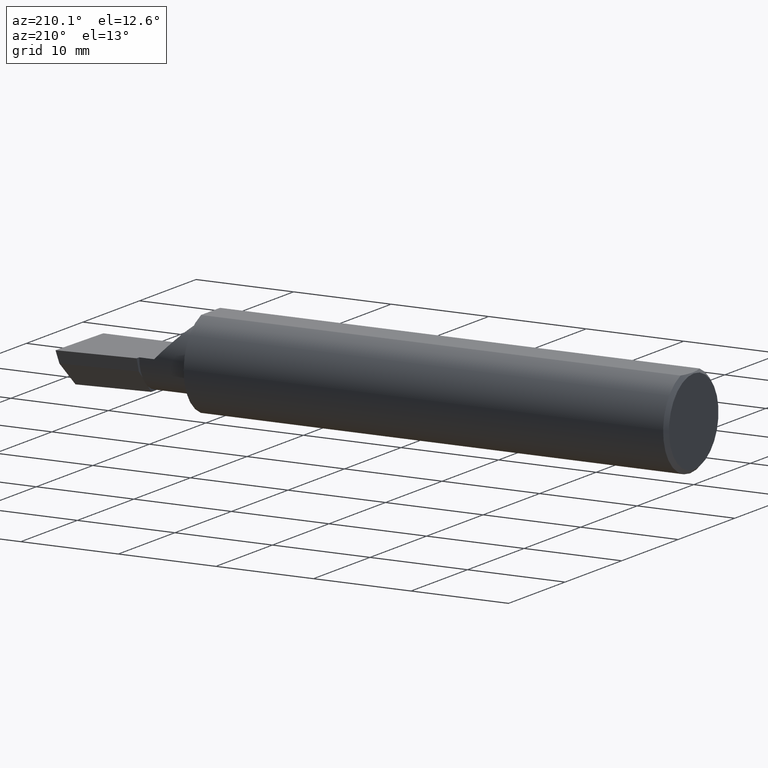
[diagram: clean part render]
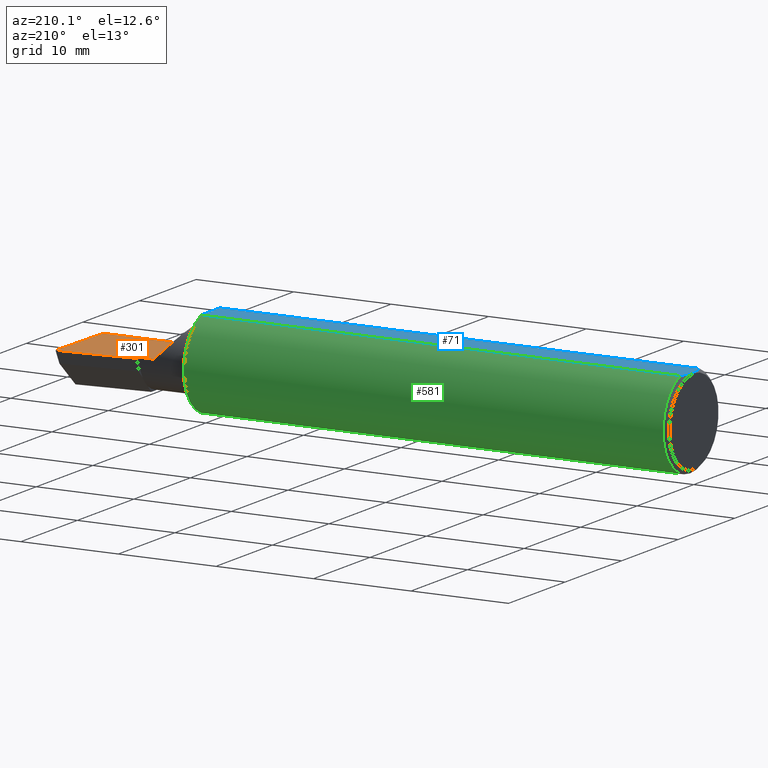
[diagram: same view with three faces highlighted in distinct colors, each labeled with its STEP entity id]
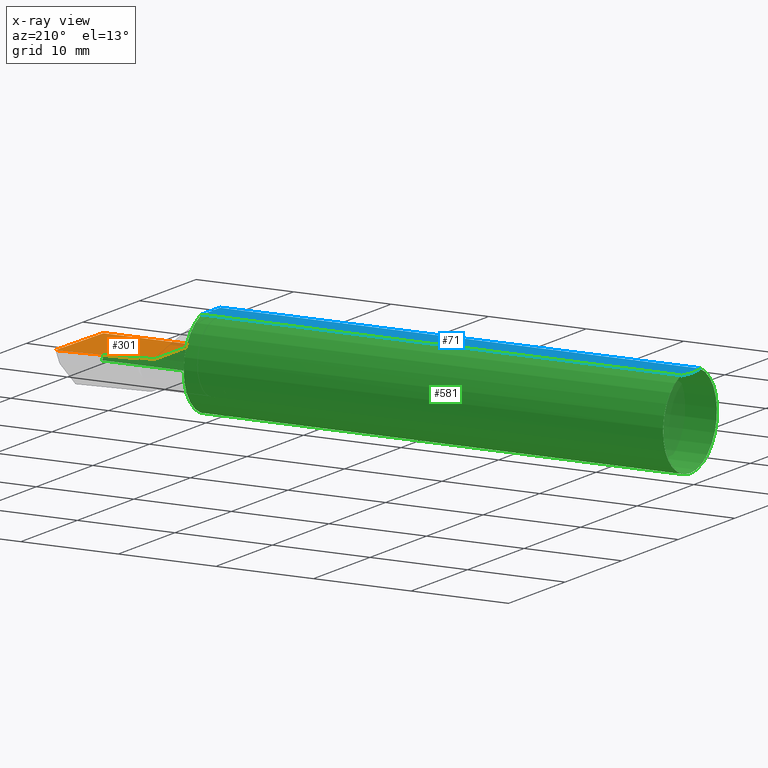
[diagram: x-ray of the same camera — body ghosted, the three highlighted faces saturated]
A machine part, auxiliary view with three faces highlighted in distinct colors.
The next image is the same camera in x-ray (body ghosted, the three faces saturated) — at least one of them is partly hidden behind the body in this view.
Their STEP definitions:

[orange] entity #301 — the highlighted planar face has unit normal (-0, 0, -1).
#35 = CARTESIAN_POINT ( 'NONE',  ( 2.189999999999999947, 0.08265000000000004288, 3.267291166268305196E-16 ) ) ;
#49 = VERTEX_POINT ( 'NONE', #541 ) ;
#50 = VERTEX_POINT ( 'NONE', #280 ) ;
#51 = DIRECTION ( 'NONE',  ( -1.000000000000000000, -0.0000000000000000000, -0.0000000000000000000 ) ) ;
#69 = EDGE_CURVE ( 'NONE', #425, #50, #242, .T. ) ;
#84 = CARTESIAN_POINT ( 'NONE',  ( 2.189999999999999947, -0.2500000000000000555, 1.003418815229743595E-16 ) ) ;
#122 = EDGE_CURVE ( 'NONE', #437, #49, #365, .T. ) ;
#152 = LINE ( 'NONE', #441, #511 ) ;
#187 = FACE_OUTER_BOUND ( 'NONE', #223, .T. ) ;
#194 = ORIENTED_EDGE ( 'NONE', *, *, #402, .T. ) ;
#199 = CARTESIAN_POINT ( 'NONE',  ( 2.129999999999999893, -0.2500000000000000555, 1.065442715258197396E-16 ) ) ;
#203 = LINE ( 'NONE', #313, #575 ) ;
#212 = VECTOR ( 'NONE', #51, 39.37007874015748143 ) ;
#222 = CARTESIAN_POINT ( 'NONE',  ( 3.377502344341257155E-32, -0.1873499999999999610, 3.267291166268304703E-16 ) ) ;
#223 = EDGE_LOOP ( 'NONE', ( #388, #194, #316, #262, #554, #263 ) ) ;
#226 = EDGE_CURVE ( 'NONE', #546, #425, #152, .T. ) ;
#238 = VECTOR ( 'NONE', #288, 39.37007874015748143 ) ;
#242 = LINE ( 'NONE', #84, #455 ) ;
#254 = LINE ( 'NONE', #199, #238 ) ;
#262 = ORIENTED_EDGE ( 'NONE', *, *, #69, .F. ) ;
#263 = ORIENTED_EDGE ( 'NONE', *, *, #477, .F. ) ;
#280 = CARTESIAN_POINT ( 'NONE',  ( 2.189999999999999947, 0.1008003950587674363, 3.265412054926814582E-16 ) ) ;
#288 = DIRECTION ( 'NONE',  ( -0.0000000000000000000, 1.000000000000000000, -0.0000000000000000000 ) ) ;
#291 = VERTEX_POINT ( 'NONE', #352 ) ;
#301 = ADVANCED_FACE ( 'NONE', ( #187 ), #423, .F. ) ;
#313 = CARTESIAN_POINT ( 'NONE',  ( 2.490039159128059953, -0.2497391662021650194, 6.932588350567417155E-17 ) ) ;
#316 = ORIENTED_EDGE ( 'NONE', *, *, #362, .F. ) ;
#352 = CARTESIAN_POINT ( 'NONE',  ( 2.499999999999978684, 0.1306500000000237194, 8.388960953200464909E-14 ) ) ;
#362 = EDGE_CURVE ( 'NONE', #50, #291, #531, .T. ) ;
#365 = LINE ( 'NONE', #222, #212 ) ;
#379 = AXIS2_PLACEMENT_3D ( 'NONE', #390, #514, #506 ) ;
#381 = DIRECTION ( 'NONE',  ( 0.02617694830779364323, 0.9996573249755593693, -2.665804247635780349E-18 ) ) ;
#386 = DIRECTION ( 'NONE',  ( 0.9953961983671787417, 0.09584575252022456415, -1.028972571603813720E-16 ) ) ;
#388 = ORIENTED_EDGE ( 'NONE', *, *, #122, .F. ) ;
#390 = CARTESIAN_POINT ( 'NONE',  ( 2.500000000000000000, -0.2500000000000000555, 6.829619984160658046E-17 ) ) ;
#402 = EDGE_CURVE ( 'NONE', #437, #291, #203, .T. ) ;
#423 = PLANE ( 'NONE',  #379 ) ;
#425 = VERTEX_POINT ( 'NONE', #35 ) ;
#427 = CARTESIAN_POINT ( 'NONE',  ( 0.5470260790800310913, -0.05740000000000000657, 2.701812985571357332E-16 ) ) ;
#437 = VERTEX_POINT ( 'NONE', #530 ) ;
#441 = CARTESIAN_POINT ( 'NONE',  ( -9.564882787816664242E-19, 0.08264999999999998737, 3.267291166268304703E-16 ) ) ;
#455 = VECTOR ( 'NONE', #498, 39.37007874015748143 ) ;
#477 = EDGE_CURVE ( 'NONE', #49, #546, #254, .T. ) ;
#498 = DIRECTION ( 'NONE',  ( -6.829619984160658816E-18, 1.000000000000000000, 7.059994452165177242E-34 ) ) ;
#506 = DIRECTION ( 'NONE',  ( -1.000000000000000000, 0.0000000000000000000, 1.033731667140896077E-16 ) ) ;
#507 = VECTOR ( 'NONE', #386, 39.37007874015748143 ) ;
#511 = VECTOR ( 'NONE', #589, 39.37007874015748143 ) ;
#514 = DIRECTION ( 'NONE',  ( -1.033731667140896077E-16, 0.0000000000000000000, -1.000000000000000000 ) ) ;
#530 = CARTESIAN_POINT ( 'NONE',  ( 2.491672876940991710, -0.1873499999999999888, 6.915950918908297591E-17 ) ) ;
#531 = LINE ( 'NONE', #427, #507 ) ;
#541 = CARTESIAN_POINT ( 'NONE',  ( 2.129999999999999893, -0.1873499999999999888, 1.065442715258197396E-16 ) ) ;
#546 = VERTEX_POINT ( 'NONE', #583 ) ;
#554 = ORIENTED_EDGE ( 'NONE', *, *, #226, .F. ) ;
#575 = VECTOR ( 'NONE', #381, 39.37007874015748854 ) ;
#583 = CARTESIAN_POINT ( 'NONE',  ( 2.129999999999999893, 0.08264999999999990410, 1.065442715258197396E-16 ) ) ;
#589 = DIRECTION ( 'NONE',  ( 1.000000000000000000, 6.829619984160658046E-18, 0.0000000000000000000 ) ) ;

[blue] entity #71 — the highlighted planar face has unit normal (0, -0, -1).
#5 = CARTESIAN_POINT ( 'NONE',  ( 0.01125230581755086272, 0.05532998191409922023, 0.1753500000000000059 ) ) ;
#14 = CARTESIAN_POINT ( 'NONE',  ( 1.949999999999999956, 0.2373500000000000332, 0.1753499999999999504 ) ) ;
#32 = CARTESIAN_POINT ( 'NONE',  ( 0.003000000000000169632, 0.01127363201155560934, 0.1753499999999999781 ) ) ;
#34 = CARTESIAN_POINT ( 'NONE',  ( 2.500000000000000000, 0.2373500000000000332, 0.1753499999999999504 ) ) ;
#53 = VECTOR ( 'NONE', #426, 39.37007874015748143 ) ;
#71 = ADVANCED_FACE ( 'NONE', ( #183 ), #261, .F. ) ;
#80 = EDGE_CURVE ( 'NONE', #81, #276, #235, .T. ) ;
#81 = VERTEX_POINT ( 'NONE', #251 ) ;
#82 = CARTESIAN_POINT ( 'NONE',  ( 0.004093196532652216939, -0.02240707710020816909, 0.1753499999999999504 ) ) ;
#89 = VECTOR ( 'NONE', #182, 39.37007874015748143 ) ;
#100 = EDGE_LOOP ( 'NONE', ( #513, #103, #480, #274, #311 ) ) ;
#103 = ORIENTED_EDGE ( 'NONE', *, *, #141, .F. ) ;
#130 = CARTESIAN_POINT ( 'NONE',  ( 0.008244775919947424855, 0.04453482769755855164, 0.1753499999999999504 ) ) ;
#141 = EDGE_CURVE ( 'NONE', #276, #233, #177, .T. ) ;
#144 = CARTESIAN_POINT ( 'NONE',  ( 0.003000000000000218638, 2.334609556160449697E-17, 0.1753499999999999781 ) ) ;
#146 = DIRECTION ( 'NONE',  ( 1.000000000000000000, 0.0000000000000000000, 0.0000000000000000000 ) ) ;
#149 = CARTESIAN_POINT ( 'NONE',  ( 0.0000000000000000000, 0.06597272163553663527, 0.1753499999999999781 ) ) ;
#171 = CARTESIAN_POINT ( 'NONE',  ( 0.003000000000000218638, 2.334609556160449697E-17, 0.1753499999999999781 ) ) ;
#176 = CARTESIAN_POINT ( 'NONE',  ( 0.004115035183746292881, 0.02255629470626744487, 0.1753499999999999781 ) ) ;
#177 = LINE ( 'NONE', #149, #299 ) ;
#182 = DIRECTION ( 'NONE',  ( 6.829619984160658046E-18, -1.000000000000000000, 1.438723400918613551E-16 ) ) ;
#183 = FACE_OUTER_BOUND ( 'NONE', #100, .T. ) ;
#191 = CARTESIAN_POINT ( 'NONE',  ( 0.003000000000000172667, -0.01126410975715121283, 0.1753500000000000059 ) ) ;
#202 = CARTESIAN_POINT ( 'NONE',  ( 1.949999999999999956, -0.06597272163553659363, 0.1753499999999999781 ) ) ;
#205 = EDGE_CURVE ( 'NONE', #233, #553, #496, .T. ) ;
#229 = CARTESIAN_POINT ( 'NONE',  ( 0.01499999999999999424, 0.06597272163553663527, 0.1753499999999999781 ) ) ;
#233 = VERTEX_POINT ( 'NONE', #463 ) ;
#234 = CARTESIAN_POINT ( 'NONE',  ( 0.01499999999999997863, -0.06597272163553657975, 0.1753499999999999781 ) ) ;
#235 = B_SPLINE_CURVE_WITH_KNOTS ( 'NONE', 3,
 ( #171, #32, #176, #130, #5, #229 ),
 .UNSPECIFIED., .F., .F.,
 ( 4, 2, 4 ),
 ( 0.003480013901590607410, 0.004330767971208083697, 0.005181522040825559984 ),
 .UNSPECIFIED. ) ;
#240 = CARTESIAN_POINT ( 'NONE',  ( 0.01128414053810044941, -0.05542038647445821781, 0.1753499999999999781 ) ) ;
#251 = CARTESIAN_POINT ( 'NONE',  ( 0.003000000000000218638, 2.334609556160449697E-17, 0.1753499999999999781 ) ) ;
#261 = PLANE ( 'NONE',  #440 ) ;
#274 = ORIENTED_EDGE ( 'NONE', *, *, #537, .F. ) ;
#276 = VERTEX_POINT ( 'NONE', #385 ) ;
#286 = CARTESIAN_POINT ( 'NONE',  ( 0.008227791779583789808, -0.04447712204611815878, 0.1753499999999999781 ) ) ;
#296 = DIRECTION ( 'NONE',  ( 0.0000000000000000000, 1.000000000000000000, -1.438723400918613551E-16 ) ) ;
#299 = VECTOR ( 'NONE', #146, 39.37007874015748143 ) ;
#310 = EDGE_CURVE ( 'NONE', #553, #474, #424, .T. ) ;
#311 = ORIENTED_EDGE ( 'NONE', *, *, #310, .F. ) ;
#321 = CARTESIAN_POINT ( 'NONE',  ( 0.01499999999999997863, -0.06597272163553657975, 0.1753499999999999781 ) ) ;
#385 = CARTESIAN_POINT ( 'NONE',  ( 0.01499999999999999424, 0.06597272163553663527, 0.1753499999999999781 ) ) ;
#392 = CARTESIAN_POINT ( 'NONE',  ( 0.0000000000000000000, -0.06597272163553657975, 0.1753499999999999781 ) ) ;
#424 = LINE ( 'NONE', #392, #53 ) ;
#426 = DIRECTION ( 'NONE',  ( -1.000000000000000000, -0.0000000000000000000, -0.0000000000000000000 ) ) ;
#440 = AXIS2_PLACEMENT_3D ( 'NONE', #34, #588, #296 ) ;
#463 = CARTESIAN_POINT ( 'NONE',  ( 1.949999999999999956, 0.06597272163553663527, 0.1753499999999999781 ) ) ;
#474 = VERTEX_POINT ( 'NONE', #321 ) ;
#480 = ORIENTED_EDGE ( 'NONE', *, *, #80, .F. ) ;
#496 = LINE ( 'NONE', #14, #89 ) ;
#513 = ORIENTED_EDGE ( 'NONE', *, *, #205, .F. ) ;
#520 = B_SPLINE_CURVE_WITH_KNOTS ( 'NONE', 3,
 ( #234, #240, #286, #82, #191, #144 ),
 .UNSPECIFIED., .F., .F.,
 ( 4, 2, 4 ),
 ( 0.001779942938356815062, 0.002629978419973711019, 0.003480013901590607410 ),
 .UNSPECIFIED. ) ;
#537 = EDGE_CURVE ( 'NONE', #474, #81, #520, .T. ) ;
#553 = VERTEX_POINT ( 'NONE', #202 ) ;
#588 = DIRECTION ( 'NONE',  ( 0.0000000000000000000, -1.438723400918613551E-16, -1.000000000000000000 ) ) ;

[green] entity #581 — the highlighted cylindrical surface (partial cylindrical patch) has radius 4.7587 mm, axis along (-1, -0, -0).
#13 = EDGE_CURVE ( 'NONE', #325, #539, #565, .T. ) ;
#19 = DIRECTION ( 'NONE',  ( -1.000000000000000000, -0.0000000000000000000, -0.0000000000000000000 ) ) ;
#20 = ORIENTED_EDGE ( 'NONE', *, *, #317, .F. ) ;
#33 = VERTEX_POINT ( 'NONE', #111 ) ;
#37 = CARTESIAN_POINT ( 'NONE',  ( 1.959999999999999964, -0.1635956445993024810, 0.09130436773856244470 ) ) ;
#45 = EDGE_CURVE ( 'NONE', #553, #256, #318, .T. ) ;
#49 = VERTEX_POINT ( 'NONE', #541 ) ;
#51 = DIRECTION ( 'NONE',  ( -1.000000000000000000, -0.0000000000000000000, -0.0000000000000000000 ) ) ;
#53 = VECTOR ( 'NONE', #426, 39.37007874015748143 ) ;
#54 = CARTESIAN_POINT ( 'NONE',  ( 1.950535130224571256, -0.1482744458446704217, -0.1147666934430602859 ) ) ;
#56 = AXIS2_PLACEMENT_3D ( 'NONE', #489, #488, #485 ) ;
#61 = CARTESIAN_POINT ( 'NONE',  ( 0.01499999999999999424, 0.0000000000000000000, 0.0000000000000000000 ) ) ;
#67 = CARTESIAN_POINT ( 'NONE',  ( 0.0000000000000000000, 0.0000000000000000000, 0.0000000000000000000 ) ) ;
#77 = EDGE_CURVE ( 'NONE', #276, #395, #257, .T. ) ;
#78 = ORIENTED_EDGE ( 'NONE', *, *, #529, .T. ) ;
#86 = CARTESIAN_POINT ( 'NONE',  ( 2.481080296960508580, -0.1635956445993030084, -0.09130436773856176469 ) ) ;
#97 = AXIS2_PLACEMENT_3D ( 'NONE', #67, #170, #127 ) ;
#98 = CARTESIAN_POINT ( 'NONE',  ( 2.066758987970638284, -0.1792580844883770730, 0.06324101202936138755 ) ) ;
#101 = ORIENTED_EDGE ( 'NONE', *, *, #123, .F. ) ;
#111 = CARTESIAN_POINT ( 'NONE',  ( 2.038695632261437130, -0.1635956445993029529, 0.09130436773856191734 ) ) ;
#119 = DIRECTION ( 'NONE',  ( 0.0000000000000000000, 0.0000000000000000000, 1.000000000000000000 ) ) ;
#122 = EDGE_CURVE ( 'NONE', #437, #49, #365, .T. ) ;
#123 = EDGE_CURVE ( 'NONE', #461, #325, #534, .T. ) ;
#127 = DIRECTION ( 'NONE',  ( 0.0000000000000000000, 0.0000000000000000000, 1.000000000000000000 ) ) ;
#132 = VERTEX_POINT ( 'NONE', #37 ) ;
#136 = EDGE_CURVE ( 'NONE', #49, #33, #260, .T. ) ;
#141 = EDGE_CURVE ( 'NONE', #276, #233, #177, .T. ) ;
#146 = DIRECTION ( 'NONE',  ( 1.000000000000000000, 0.0000000000000000000, 0.0000000000000000000 ) ) ;
#149 = CARTESIAN_POINT ( 'NONE',  ( 0.0000000000000000000, 0.06597272163553663527, 0.1753499999999999781 ) ) ;
#158 = CARTESIAN_POINT ( 'NONE',  ( 2.038695632261437130, -0.1635956445993029529, 0.09130436773856191734 ) ) ;
#159 = ORIENTED_EDGE ( 'NONE', *, *, #45, .F. ) ;
#169 = CARTESIAN_POINT ( 'NONE',  ( 2.484117089522337452, -0.1792580844883771007, -0.06324101202936138755 ) ) ;
#170 = DIRECTION ( 'NONE',  ( -1.000000000000000000, -0.0000000000000000000, -0.0000000000000000000 ) ) ;
#174 = LINE ( 'NONE', #494, #190 ) ;
#177 = LINE ( 'NONE', #149, #299 ) ;
#179 = CARTESIAN_POINT ( 'NONE',  ( 2.097861799102314961, -0.1873500000000000165, 0.03213820089768509858 ) ) ;
#190 = VECTOR ( 'NONE', #508, 39.37007874015748143 ) ;
#193 = CARTESIAN_POINT ( 'NONE',  ( 2.129999999999999893, -0.1873499999999999888, 1.065442715258197396E-16 ) ) ;
#197 = ORIENTED_EDGE ( 'NONE', *, *, #338, .F. ) ;
#202 = CARTESIAN_POINT ( 'NONE',  ( 1.949999999999999956, -0.06597272163553659363, 0.1753499999999999781 ) ) ;
#207 = CARTESIAN_POINT ( 'NONE',  ( 2.481080296960508580, -0.1635956445993030084, -0.09130436773856176469 ) ) ;
#211 = ORIENTED_EDGE ( 'NONE', *, *, #141, .T. ) ;
#212 = VECTOR ( 'NONE', #51, 39.37007874015748143 ) ;
#216 = ORIENTED_EDGE ( 'NONE', *, *, #310, .T. ) ;
#222 = CARTESIAN_POINT ( 'NONE',  ( 3.377502344341257155E-32, -0.1873499999999999610, 3.267291166268304703E-16 ) ) ;
#231 = CARTESIAN_POINT ( 'NONE',  ( 1.956503643436638074, -0.1620795007490426487, -0.09397341491037392025 ) ) ;
#233 = VERTEX_POINT ( 'NONE', #463 ) ;
#243 = CARTESIAN_POINT ( 'NONE',  ( 1.949999999999999956, -0.1383256097560975340, -0.1263568288047931809 ) ) ;
#244 = CARTESIAN_POINT ( 'NONE',  ( 2.487725449370724817, -0.1873500000000000443, -0.03213820089768506388 ) ) ;
#248 = CARTESIAN_POINT ( 'NONE',  ( 2.491672876940991710, -0.1873499999999999888, 6.915950918908297591E-17 ) ) ;
#256 = VERTEX_POINT ( 'NONE', #324 ) ;
#257 = CIRCLE ( 'NONE', #396, 0.1873499999999999888 ) ;
#260 =( BOUNDED_CURVE ( )  B_SPLINE_CURVE ( 3, ( #193, #179, #98, #158 ),
 .UNSPECIFIED., .F., .T. ) 
 B_SPLINE_CURVE_WITH_KNOTS ( ( 4, 4 ),
 ( 4.712388980384689674, 5.221437360734125122 ),
 .UNSPECIFIED. ) 
 CURVE ( )  GEOMETRIC_REPRESENTATION_ITEM ( )  RATIONAL_B_SPLINE_CURVE ( ( 1.000000000000000000, 0.9785221379938656705, 0.9785221379938656705, 1.000000000000000000 ) ) 
 REPRESENTATION_ITEM ( '' )  );
#270 = CYLINDRICAL_SURFACE ( 'NONE', #97, 0.1873499999999999888 ) ;
#276 = VERTEX_POINT ( 'NONE', #385 ) ;
#284 = B_SPLINE_CURVE_WITH_KNOTS ( 'NONE', 3,
 ( #482, #439, #567, #542, #549, #558, #557, #573, #491, #356, #574, #578 ),
 .UNSPECIFIED., .F., .F.,
 ( 4, 2, 2, 2, 2, 4 ),
 ( 0.0009392928737449158204, 0.001524303482983965612, 0.001816808787603488989, 0.001963061439913247642, 0.002036187766068127403, 0.002109314092223006729 ),
 .UNSPECIFIED. ) ;
#285 = ORIENTED_EDGE ( 'NONE', *, *, #364, .F. ) ;
#287 = CARTESIAN_POINT ( 'NONE',  ( 1.953013987655236372, -0.1568958379530025204, -0.1024560150687160859 ) ) ;
#290 = CIRCLE ( 'NONE', #465, 0.1873499999999999888 ) ;
#299 = VECTOR ( 'NONE', #146, 39.37007874015748143 ) ;
#310 = EDGE_CURVE ( 'NONE', #553, #474, #424, .T. ) ;
#314 = EDGE_CURVE ( 'NONE', #395, #474, #436, .T. ) ;
#317 = EDGE_CURVE ( 'NONE', #132, #33, #174, .T. ) ;
#318 = CIRCLE ( 'NONE', #473, 0.1873499999999999888 ) ;
#321 = CARTESIAN_POINT ( 'NONE',  ( 0.01499999999999997863, -0.06597272163553657975, 0.1753499999999999781 ) ) ;
#324 = CARTESIAN_POINT ( 'NONE',  ( 1.949999999999999956, -0.1383256097560975340, 0.1263568288047931809 ) ) ;
#325 = VERTEX_POINT ( 'NONE', #481 ) ;
#327 = EDGE_LOOP ( 'NONE', ( #101, #78, #525, #535, #20, #197, #159, #216, #341, #417, #211, #285, #500 ) ) ;
#336 = DIRECTION ( 'NONE',  ( 1.000000000000000000, 6.829619984160658046E-18, 0.0000000000000000000 ) ) ;
#338 = EDGE_CURVE ( 'NONE', #256, #132, #284, .T. ) ;
#339 = DIRECTION ( 'NONE',  ( -1.000000000000000000, -6.829619984160658046E-18, -0.0000000000000000000 ) ) ;
#341 = ORIENTED_EDGE ( 'NONE', *, *, #314, .F. ) ;
#347 =( BOUNDED_CURVE ( )  B_SPLINE_CURVE ( 3, ( #86, #169, #244, #248 ),
 .UNSPECIFIED., .F., .T. ) 
 B_SPLINE_CURVE_WITH_KNOTS ( ( 4, 4 ),
 ( 0.8516985021657650368, 1.360746882515200484 ),
 .UNSPECIFIED. ) 
 CURVE ( )  GEOMETRIC_REPRESENTATION_ITEM ( )  RATIONAL_B_SPLINE_CURVE ( ( 1.000000000000000000, 0.9785221379938656705, 0.9785221379938656705, 1.000000000000000000 ) ) 
 REPRESENTATION_ITEM ( '' )  );
#349 = FACE_OUTER_BOUND ( 'NONE', #327, .T. ) ;
#354 = DIRECTION ( 'NONE',  ( 1.000000000000000000, 6.829619984160658046E-18, 0.0000000000000000000 ) ) ;
#356 = CARTESIAN_POINT ( 'NONE',  ( 1.958216394543444983, -0.1632528125625385962, 0.09191892236924101289 ) ) ;
#359 = CARTESIAN_POINT ( 'NONE',  ( 1.955249642630817242, -0.1607705839484627752, -0.09620717711675645656 ) ) ;
#364 = EDGE_CURVE ( 'NONE', #539, #233, #290, .T. ) ;
#365 = LINE ( 'NONE', #222, #212 ) ;
#371 = CARTESIAN_POINT ( 'NONE',  ( 0.01499999999999999424, 0.0000000000000000000, -0.1873499999999999888 ) ) ;
#373 = CARTESIAN_POINT ( 'NONE',  ( 1.949999999999999956, 0.0000000000000000000, 0.0000000000000000000 ) ) ;
#378 = DIRECTION ( 'NONE',  ( 0.0000000000000000000, 1.000000000000000000, 0.0000000000000000000 ) ) ;
#382 = CARTESIAN_POINT ( 'NONE',  ( 1.949999999999999956, -0.1383256097560975340, -0.1263568288047931809 ) ) ;
#385 = CARTESIAN_POINT ( 'NONE',  ( 0.01499999999999999424, 0.06597272163553663527, 0.1753499999999999781 ) ) ;
#392 = CARTESIAN_POINT ( 'NONE',  ( 0.0000000000000000000, -0.06597272163553657975, 0.1753499999999999781 ) ) ;
#395 = VERTEX_POINT ( 'NONE', #371 ) ;
#396 = AXIS2_PLACEMENT_3D ( 'NONE', #61, #19, #119 ) ;
#417 = ORIENTED_EDGE ( 'NONE', *, *, #77, .F. ) ;
#424 = LINE ( 'NONE', #392, #53 ) ;
#426 = DIRECTION ( 'NONE',  ( -1.000000000000000000, -0.0000000000000000000, -0.0000000000000000000 ) ) ;
#434 = CARTESIAN_POINT ( 'NONE',  ( 1.949999999999999512, -0.1434457138613161042, -0.1207517378170855082 ) ) ;
#436 = CIRCLE ( 'NONE', #56, 0.1873499999999999888 ) ;
#437 = VERTEX_POINT ( 'NONE', #530 ) ;
#439 = CARTESIAN_POINT ( 'NONE',  ( 1.950000000000000178, -0.1434410963562314234, 0.1207567927018307896 ) ) ;
#446 = CARTESIAN_POINT ( 'NONE',  ( 1.954627300813618351, -0.1598199155693376394, -0.09778034674766689083 ) ) ;
#461 = VERTEX_POINT ( 'NONE', #207 ) ;
#463 = CARTESIAN_POINT ( 'NONE',  ( 1.949999999999999956, 0.06597272163553663527, 0.1753499999999999781 ) ) ;
#465 = AXIS2_PLACEMENT_3D ( 'NONE', #373, #336, #378 ) ;
#472 = CARTESIAN_POINT ( 'NONE',  ( 1.952284340146846819, -0.1548226717605712954, -0.1055657780131314255 ) ) ;
#473 = AXIS2_PLACEMENT_3D ( 'NONE', #540, #354, #543 ) ;
#474 = VERTEX_POINT ( 'NONE', #321 ) ;
#481 = CARTESIAN_POINT ( 'NONE',  ( 1.959999999999999964, -0.1635956445993023423, -0.09130436773856262511 ) ) ;
#482 = CARTESIAN_POINT ( 'NONE',  ( 1.949999999999999956, -0.1383256097560975340, 0.1263568288047931809 ) ) ;
#485 = DIRECTION ( 'NONE',  ( 0.0000000000000000000, 0.0000000000000000000, 1.000000000000000000 ) ) ;
#488 = DIRECTION ( 'NONE',  ( -1.000000000000000000, -0.0000000000000000000, -0.0000000000000000000 ) ) ;
#489 = CARTESIAN_POINT ( 'NONE',  ( 0.01499999999999999424, 0.0000000000000000000, 0.0000000000000000000 ) ) ;
#491 = CARTESIAN_POINT ( 'NONE',  ( 1.957002686248069834, -0.1625222757049321898, 0.09320450095779690691 ) ) ;
#494 = CARTESIAN_POINT ( 'NONE',  ( 2.075000000000000178, -0.1635956445993030084, 0.09130436773856176469 ) ) ;
#500 = ORIENTED_EDGE ( 'NONE', *, *, #13, .F. ) ;
#508 = DIRECTION ( 'NONE',  ( 1.000000000000000000, 6.829619984160658046E-18, 0.0000000000000000000 ) ) ;
#516 = CARTESIAN_POINT ( 'NONE',  ( 1.958200855161537746, -0.1632467142437132035, -0.09192985110639269319 ) ) ;
#519 = CARTESIAN_POINT ( 'NONE',  ( 1.959999999999999964, -0.1635956445993023423, -0.09130436773856262511 ) ) ;
#525 = ORIENTED_EDGE ( 'NONE', *, *, #122, .T. ) ;
#527 = CARTESIAN_POINT ( 'NONE',  ( 2.075000000000000178, -0.1635956445993030084, -0.09130436773856176469 ) ) ;
#529 = EDGE_CURVE ( 'NONE', #461, #437, #347, .T. ) ;
#530 = CARTESIAN_POINT ( 'NONE',  ( 2.491672876940991710, -0.1873499999999999888, 6.915950918908297591E-17 ) ) ;
#533 = CARTESIAN_POINT ( 'NONE',  ( 1.959014641741961826, -0.1635956445993026198, -0.09130436773856263899 ) ) ;
#534 = LINE ( 'NONE', #527, #563 ) ;
#535 = ORIENTED_EDGE ( 'NONE', *, *, #136, .T. ) ;
#539 = VERTEX_POINT ( 'NONE', #243 ) ;
#540 = CARTESIAN_POINT ( 'NONE',  ( 1.949999999999999956, 0.0000000000000000000, 0.0000000000000000000 ) ) ;
#541 = CARTESIAN_POINT ( 'NONE',  ( 2.129999999999999893, -0.1873499999999999888, 1.065442715258197396E-16 ) ) ;
#542 = CARTESIAN_POINT ( 'NONE',  ( 1.952291668372490685, -0.1548472237252441763, 0.1055305370847131191 ) ) ;
#543 = DIRECTION ( 'NONE',  ( 0.0000000000000000000, 1.000000000000000000, 0.0000000000000000000 ) ) ;
#549 = CARTESIAN_POINT ( 'NONE',  ( 1.953030094855348731, -0.1569359418858940203, 0.1023945457153810773 ) ) ;
#553 = VERTEX_POINT ( 'NONE', #202 ) ;
#557 = CARTESIAN_POINT ( 'NONE',  ( 1.955270962286581149, -0.1607994114084979054, 0.09615890281982712728 ) ) ;
#558 = CARTESIAN_POINT ( 'NONE',  ( 1.954651161669207049, -0.1598575446545088818, 0.09771880834312134112 ) ) ;
#559 = CARTESIAN_POINT ( 'NONE',  ( 1.956977885846546306, -0.1625039841807081609, -0.09323648621225627542 ) ) ;
#563 = VECTOR ( 'NONE', #339, 39.37007874015748143 ) ;
#565 = B_SPLINE_CURVE_WITH_KNOTS ( 'NONE', 3,
 ( #519, #533, #516, #559, #231, #359, #446, #287, #472, #54, #434, #382 ),
 .UNSPECIFIED., .F., .F.,
 ( 4, 2, 2, 2, 2, 4 ),
 ( 1.968964099585697094E-07, 7.414172666648418124E-05, 0.0001480865569230097891, 0.0002959762174360506507, 0.0005917555384621323196, 0.001183314180514298368 ),
 .UNSPECIFIED. ) ;
#567 = CARTESIAN_POINT ( 'NONE',  ( 1.950530357231194944, -0.1482623167742067316, 0.1147852156680474883 ) ) ;
#573 = CARTESIAN_POINT ( 'NONE',  ( 1.956530533518343828, -0.1621041320318377665, 0.09393089788995236111 ) ) ;
#574 = CARTESIAN_POINT ( 'NONE',  ( 1.959029114488072709, -0.1635956446012893084, 0.09130436773500415215 ) ) ;
#578 = CARTESIAN_POINT ( 'NONE',  ( 1.959999999999999964, -0.1635956445993024810, 0.09130436773856244470 ) ) ;
#581 = ADVANCED_FACE ( 'NONE', ( #349 ), #270, .T. ) ;